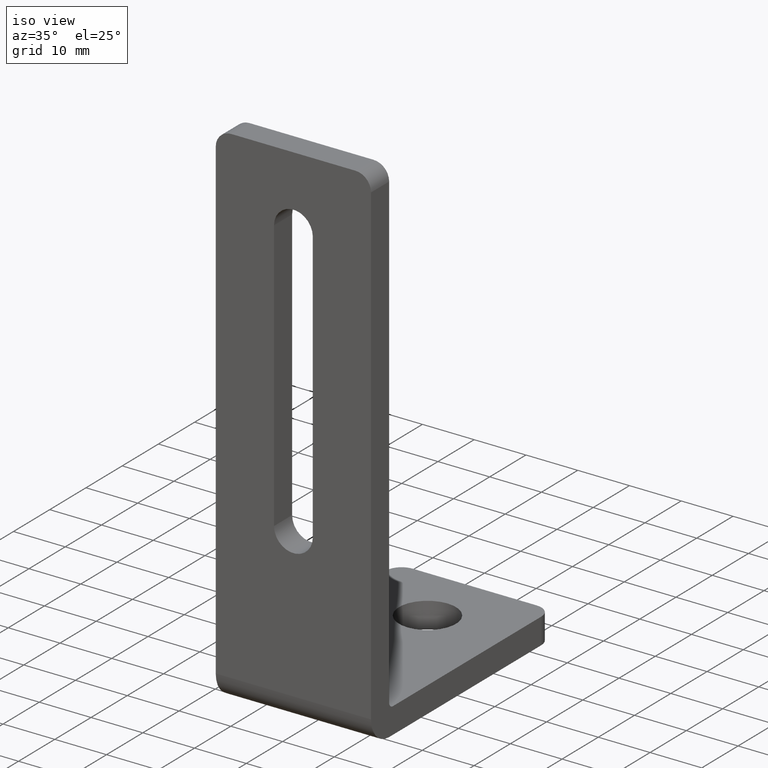
[diagram: clean part render]
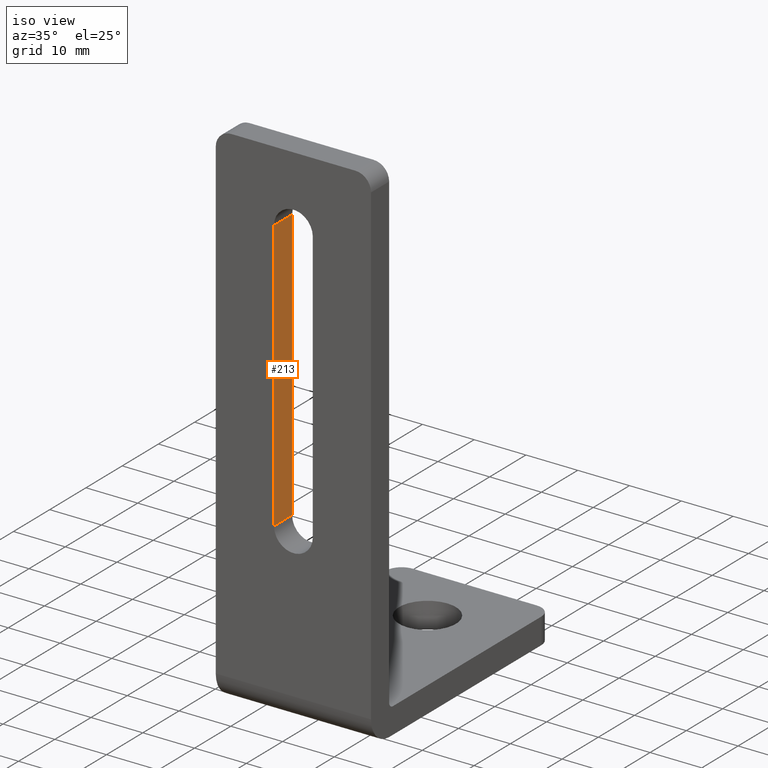
[diagram: same view with one face highlighted and labeled with its STEP entity id]
A machine part, iso view. The second image highlights one B-rep face of the part: STEP entity #213.
In plain terms, the highlighted planar face has unit normal (-1, 0, 0).
Its self-contained STEP definition (entity closure, byte-faithful):
#91=CARTESIAN_POINT('',(-3.750000000000000,-31.999999999998170,33.750000000000000));
#92=VERTEX_POINT('',#91);
#93=CARTESIAN_POINT('',(-3.750000000000000,-36.999999999998181,33.750000000000000));
#94=VERTEX_POINT('',#93);
#95=CARTESIAN_POINT('',(-3.750000000000000,-31.999999999998170,33.750000000000000));
#96=DIRECTION('',(0.0,-1.0,0.0));
#97=VECTOR('',#96,5.000000000000011);
#98=LINE('',#95,#97);
#99=EDGE_CURVE('',#92,#94,#98,.T.);
#165=CARTESIAN_POINT('',(-3.750000000000000,-36.999999999998174,86.250000000000000));
#166=VERTEX_POINT('',#165);
#174=CARTESIAN_POINT('',(-3.750000000000000,-31.999999999998170,86.250000000000000));
#175=VERTEX_POINT('',#174);
#176=CARTESIAN_POINT('',(-3.750000000000000,-31.999999999998170,86.250000000000000));
#177=DIRECTION('',(0.0,-1.0,0.0));
#178=VECTOR('',#177,5.000000000000011);
#179=LINE('',#176,#178);
#180=EDGE_CURVE('',#175,#166,#179,.T.);
#192=CARTESIAN_POINT('',(-3.750000000000000,18.000663757326041,86.250000000000000));
#193=DIRECTION('',(-1.0,0.0,0.0));
#194=DIRECTION('',(0.0,0.0,-1.0));
#195=AXIS2_PLACEMENT_3D('',#192,#193,#194);
#196=PLANE('',#195);
#197=CARTESIAN_POINT('',(-3.750000000000000,-31.999999999998170,33.750000000000000));
#198=DIRECTION('',(0.0,0.0,1.0));
#199=VECTOR('',#198,52.500000000000000);
#200=LINE('',#197,#199);
#201=EDGE_CURVE('',#92,#175,#200,.T.);
#202=ORIENTED_EDGE('',*,*,#201,.T.);
#203=ORIENTED_EDGE('',*,*,#180,.T.);
#204=CARTESIAN_POINT('',(-3.750000000000000,-36.999999999998181,33.750000000000000));
#205=DIRECTION('',(0.0,0.0,1.0));
#206=VECTOR('',#205,52.500000000000000);
#207=LINE('',#204,#206);
#208=EDGE_CURVE('',#94,#166,#207,.T.);
#209=ORIENTED_EDGE('',*,*,#208,.F.);
#210=ORIENTED_EDGE('',*,*,#99,.F.);
#211=EDGE_LOOP('',(#202,#203,#209,#210));
#212=FACE_OUTER_BOUND('',#211,.T.);
#213=ADVANCED_FACE('',(#212),#196,.F.);